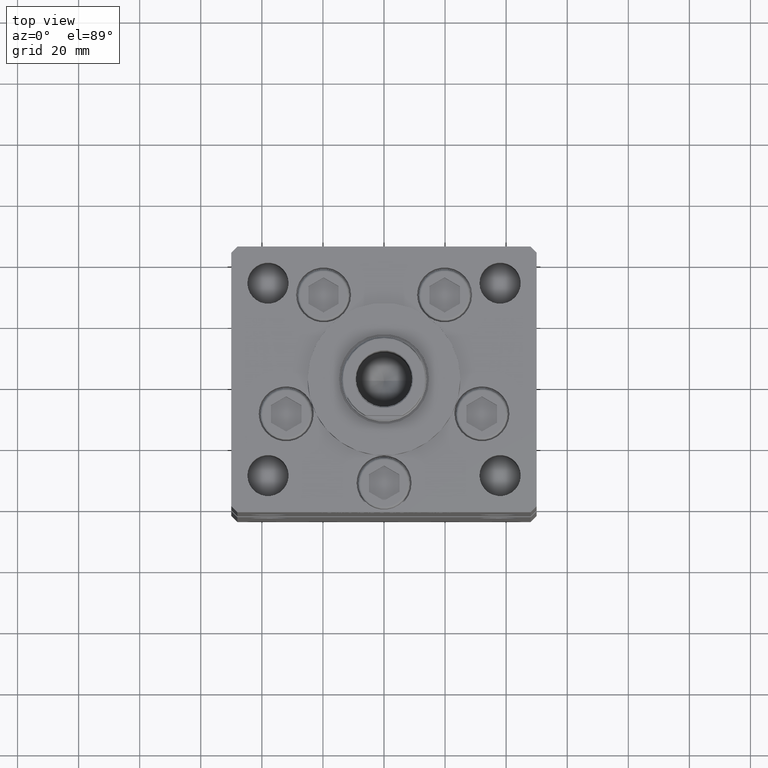
[diagram: clean part render]
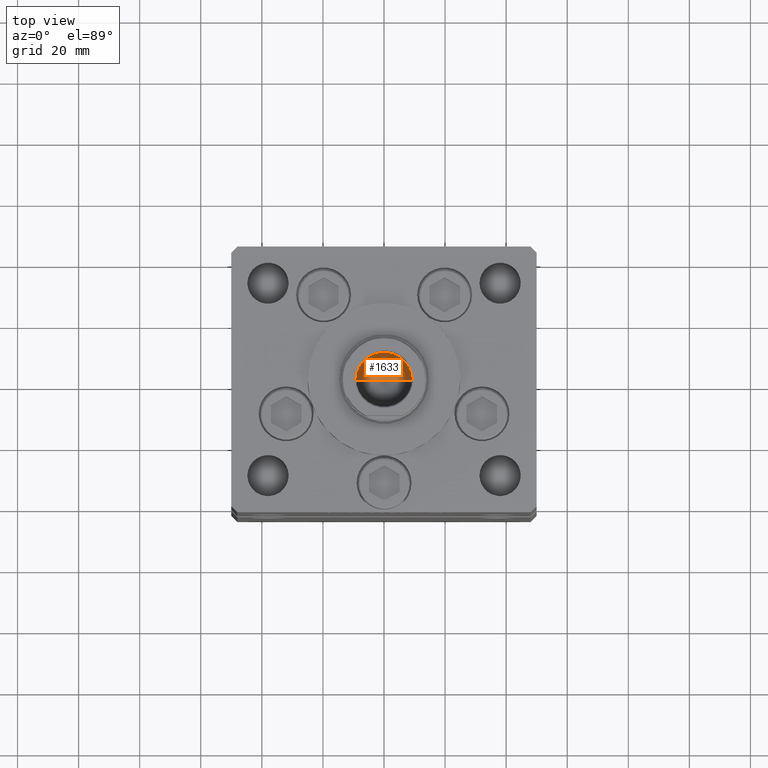
[diagram: same view with one face highlighted and labeled with its STEP entity id]
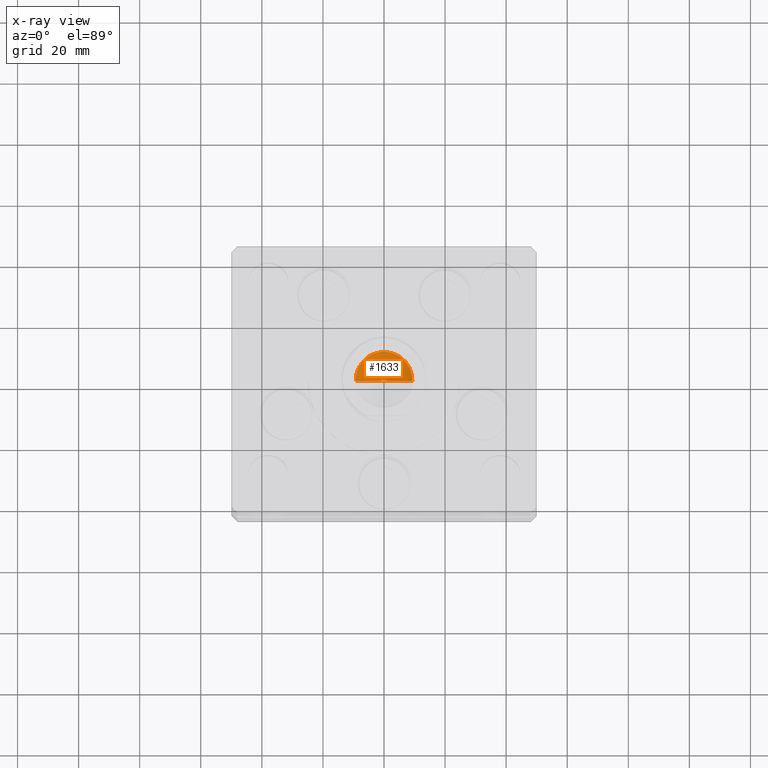
[diagram: x-ray of the same camera — body ghosted, the highlighted face saturated]
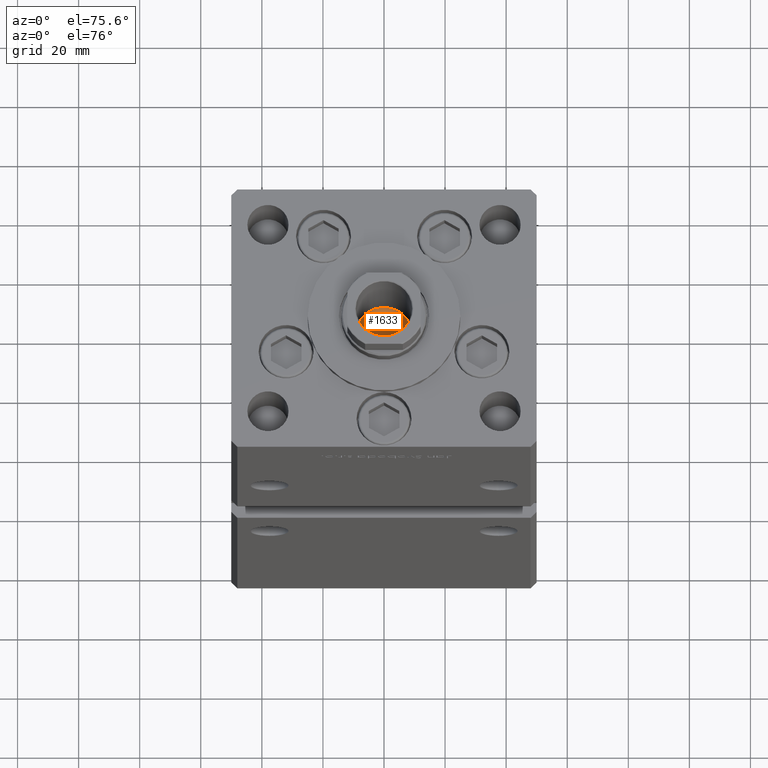
[diagram: same view with one face highlighted and labeled with its STEP entity id]
A machine part, top view. The second image highlights one B-rep face of the part: STEP entity #1633.
The next image is the same camera in x-ray: the body ghosted, the highlighted face saturated — about 0% of this face is hidden behind the body in this view.
A second angle (auxiliary view) of the same face is appended — the face is thin or edge-on in the first view.
In plain terms, the highlighted conical surface has half-angle 59 deg.
Its self-contained STEP definition (entity closure, byte-faithful):
#609 = CARTESIAN_POINT ( 'NONE',  ( 9.249999999999994671, 0.000000000000000000, 130.2500000000000000 ) ) ;
#1633 = ADVANCED_FACE ( 'NONE', ( #8228 ), #46996, .F. ) ;
#3362 = LINE ( 'NONE', #8757, #35818 ) ;
#3641 = DIRECTION ( 'NONE',  ( 1.000000000000000000, 0.000000000000000000, 0.000000000000000000 ) ) ;
#4176 = DIRECTION ( 'NONE',  ( -0.8571673007021117785, 1.049727191138617956E-16, 0.5150380749100550437 ) ) ;
#5568 = EDGE_CURVE ( 'NONE', #36335, #50913, #14441, .T. ) ;
#8228 = FACE_OUTER_BOUND ( 'NONE', #12521, .T. ) ;
#8757 = CARTESIAN_POINT ( 'NONE',  ( -9.249999999999994671, 1.132798289211300909E-15, 130.2500000000000000 ) ) ;
#10232 = CARTESIAN_POINT ( 'NONE',  ( 0.000000000000000000, 0.000000000000000000, 130.2500000000000000 ) ) ;
#12521 = EDGE_LOOP ( 'NONE', ( #48164, #16627, #19306 ) ) ;
#14441 = CIRCLE ( 'NONE', #41962, 9.249999999999994671 ) ;
#16055 = AXIS2_PLACEMENT_3D ( 'NONE', #24126, #28150, #3641 ) ;
#16627 = ORIENTED_EDGE ( 'NONE', *, *, #37909, .T. ) ;
#18097 = DIRECTION ( 'NONE',  ( 0.8571673007021117785, 0.000000000000000000, 0.5150380749100550437 ) ) ;
#19306 = ORIENTED_EDGE ( 'NONE', *, *, #5568, .T. ) ;
#22447 = VERTEX_POINT ( 'NONE', #42155 ) ;
#22884 = DIRECTION ( 'NONE',  ( 1.000000000000000000, 0.000000000000000000, 0.000000000000000000 ) ) ;
#24126 = CARTESIAN_POINT ( 'NONE',  ( 0.000000000000000000, 0.000000000000000000, 130.2500000000000000 ) ) ;
#28150 = DIRECTION ( 'NONE',  ( -0.000000000000000000, -0.000000000000000000, 1.000000000000000000 ) ) ;
#31678 = CARTESIAN_POINT ( 'NONE',  ( -9.249999999999994671, 1.132798289211300909E-15, 130.2500000000000000 ) ) ;
#31732 = DIRECTION ( 'NONE',  ( -0.000000000000000000, -0.000000000000000000, 1.000000000000000000 ) ) ;
#32273 = VECTOR ( 'NONE', #18097, 1000.000000000000000 ) ;
#35818 = VECTOR ( 'NONE', #4176, 1000.000000000000000 ) ;
#36335 = VERTEX_POINT ( 'NONE', #44435 ) ;
#37482 = LINE ( 'NONE', #609, #32273 ) ;
#37909 = EDGE_CURVE ( 'NONE', #22447, #36335, #37482, .T. ) ;
#40825 = EDGE_CURVE ( 'NONE', #22447, #50913, #3362, .T. ) ;
#41962 = AXIS2_PLACEMENT_3D ( 'NONE', #10232, #31732, #22884 ) ;
#42155 = CARTESIAN_POINT ( 'NONE',  ( -1.046994375366439223E-14, 0.000000000000000000, 124.6920392739950643 ) ) ;
#44435 = CARTESIAN_POINT ( 'NONE',  ( 9.249999999999994671, 0.000000000000000000, 130.2500000000000000 ) ) ;
#46996 = CONICAL_SURFACE ( 'NONE', #16055, 9.249999999999994671, 1.029744258676653423 ) ;
#48164 = ORIENTED_EDGE ( 'NONE', *, *, #40825, .F. ) ;
#50913 = VERTEX_POINT ( 'NONE', #31678 ) ;